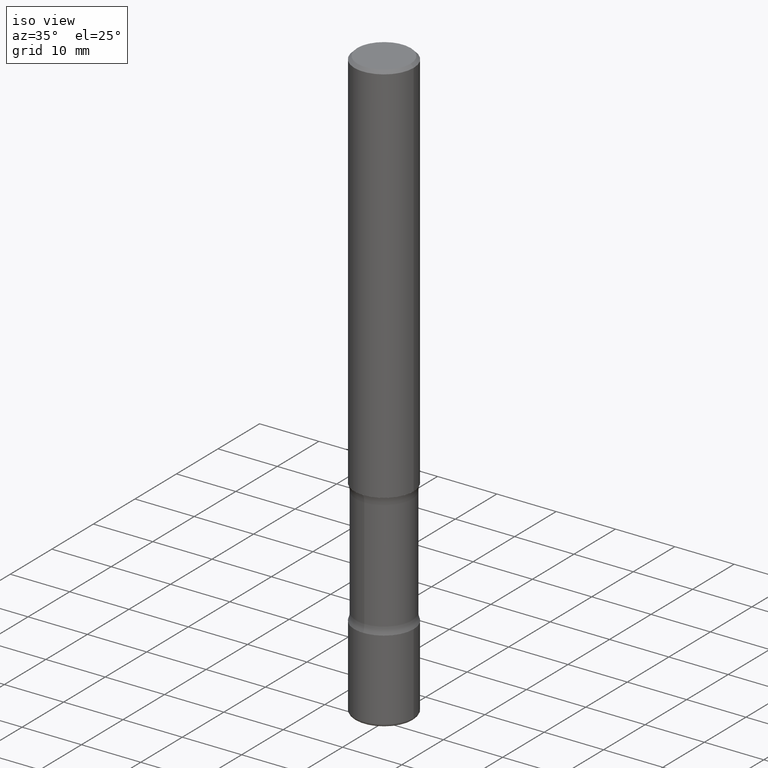
[diagram: clean part render]
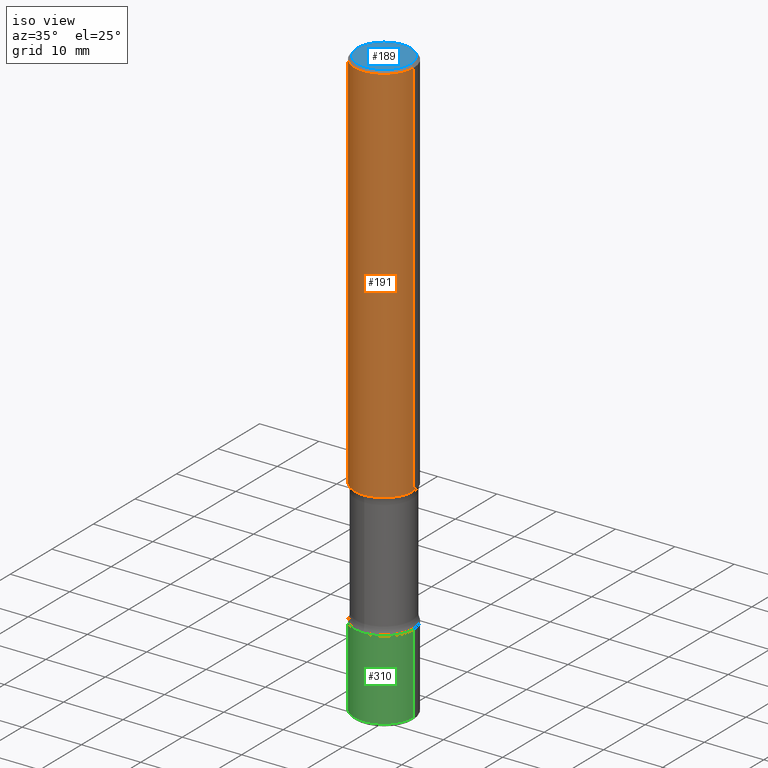
[diagram: same view with three faces highlighted in distinct colors, each labeled with its STEP entity id]
A machine part, iso view with three faces highlighted in distinct colors.
Their STEP definitions:

[orange] entity #191 — the highlighted cylindrical surface (edge-blend (fillet) strip) has radius 5 mm, axis along (-0, 0, 1).
#16 = CARTESIAN_POINT ( 'NONE',  ( -0.1968499999999998307, 1.304766576325677324E-15, -0.02000000000000006981 ) ) ;
#49 = AXIS2_PLACEMENT_3D ( 'NONE', #349, #146, #486 ) ;
#86 = CARTESIAN_POINT ( 'NONE',  ( -0.1968500000000001082, -3.103561811094476227E-15, -2.559000000000000163 ) ) ;
#87 = CARTESIAN_POINT ( 'NONE',  ( 0.000000000000000000, 0.000000000000000000, 0.000000000000000000 ) ) ;
#115 = VECTOR ( 'NONE', #469, 39.37007874015748143 ) ;
#119 = EDGE_CURVE ( 'NONE', #239, #194, #462, .T. ) ;
#122 = VERTEX_POINT ( 'NONE', #16 ) ;
#146 = DIRECTION ( 'NONE',  ( -2.445468806185136597E-29, 3.491481338843145583E-15, 1.000000000000000000 ) ) ;
#148 = EDGE_CURVE ( 'NONE', #316, #239, #497, .T. ) ;
#191 = ADVANCED_FACE ( 'NONE', ( #298 ), #226, .T. ) ;
#194 = VERTEX_POINT ( 'NONE', #372 ) ;
#210 = CARTESIAN_POINT ( 'NONE',  ( 0.1968500000000001082, -1.030929694920215344E-14, -2.559000000000000163 ) ) ;
#223 = DIRECTION ( 'NONE',  ( 1.000000000000000000, -6.982962677686266711E-15, 4.876176775795935793E-29 ) ) ;
#226 = CYLINDRICAL_SURFACE ( 'NONE', #403, 0.1968499999999999694 ) ;
#239 = VERTEX_POINT ( 'NONE', #210 ) ;
#275 = ORIENTED_EDGE ( 'NONE', *, *, #392, .F. ) ;
#282 = EDGE_LOOP ( 'NONE', ( #275, #375, #481, #540 ) ) ;
#292 = CIRCLE ( 'NONE', #483, 0.1968499999999998307 ) ;
#295 = DIRECTION ( 'NONE',  ( 1.000000000000000000, -6.982962677686266711E-15, 0.000000000000000000 ) ) ;
#298 = FACE_OUTER_BOUND ( 'NONE', #282, .T. ) ;
#301 = EDGE_CURVE ( 'NONE', #122, #194, #292, .T. ) ;
#305 = CARTESIAN_POINT ( 'NONE',  ( 0.1968499999999999694, -1.374596203102541411E-15, 9.598753983154298056E-30 ) ) ;
#316 = VERTEX_POINT ( 'NONE', #86 ) ;
#330 = CARTESIAN_POINT ( 'NONE',  ( 4.890937612370289799E-31, -6.982962677686315028E-17, -0.02000000000000006981 ) ) ;
#349 = CARTESIAN_POINT ( 'NONE',  ( 6.257954675027765161E-29, -8.934700746099610252E-15, -2.559000000000000163 ) ) ;
#371 = CARTESIAN_POINT ( 'NONE',  ( -0.1968499999999999694, 1.398703375343756999E-15, -9.682923725166782276E-30 ) ) ;
#372 = CARTESIAN_POINT ( 'NONE',  ( 0.1968499999999998307, -1.420318657638187938E-15, -0.02000000000000006981 ) ) ;
#375 = ORIENTED_EDGE ( 'NONE', *, *, #148, .T. ) ;
#392 = EDGE_CURVE ( 'NONE', #316, #122, #528, .T. ) ;
#403 = AXIS2_PLACEMENT_3D ( 'NONE', #87, #500, #223 ) ;
#462 = LINE ( 'NONE', #305, #115 ) ;
#469 = DIRECTION ( 'NONE',  ( -2.445468806185136877E-29, 3.491481338843145188E-15, 1.000000000000000000 ) ) ;
#472 = DIRECTION ( 'NONE',  ( -2.445468806185136877E-29, 3.491481338843145188E-15, 1.000000000000000000 ) ) ;
#481 = ORIENTED_EDGE ( 'NONE', *, *, #119, .T. ) ;
#483 = AXIS2_PLACEMENT_3D ( 'NONE', #330, #548, #295 ) ;
#486 = DIRECTION ( 'NONE',  ( 1.000000000000000000, -6.982962677686265133E-15, 0.000000000000000000 ) ) ;
#497 = CIRCLE ( 'NONE', #49, 0.1968500000000001082 ) ;
#500 = DIRECTION ( 'NONE',  ( -2.445468806185136597E-29, 3.491481338843145583E-15, 1.000000000000000000 ) ) ;
#511 = VECTOR ( 'NONE', #472, 39.37007874015748143 ) ;
#528 = LINE ( 'NONE', #371, #511 ) ;
#540 = ORIENTED_EDGE ( 'NONE', *, *, #301, .F. ) ;
#548 = DIRECTION ( 'NONE',  ( -2.445468806185136597E-29, 3.491481338843145583E-15, 1.000000000000000000 ) ) ;

[blue] entity #189 — the highlighted planar face has unit normal (0, -0, -1).
#22 = PLANE ( 'NONE',  #147 ) ;
#62 = DIRECTION ( 'NONE',  ( -2.445468806185136597E-29, 3.491481338843145583E-15, 1.000000000000000000 ) ) ;
#84 = VERTEX_POINT ( 'NONE', #417 ) ;
#103 = AXIS2_PLACEMENT_3D ( 'NONE', #170, #62, #482 ) ;
#108 = FACE_OUTER_BOUND ( 'NONE', #543, .T. ) ;
#147 = AXIS2_PLACEMENT_3D ( 'NONE', #274, #439, #261 ) ;
#157 = DIRECTION ( 'NONE',  ( -2.445468806185136597E-29, 3.491481338843145583E-15, 1.000000000000000000 ) ) ;
#163 = ORIENTED_EDGE ( 'NONE', *, *, #246, .T. ) ;
#170 = CARTESIAN_POINT ( 'NONE',  ( -1.043851414335219820E-46, 1.490343170380447200E-32, 4.268512490100411279E-18 ) ) ;
#183 = CARTESIAN_POINT ( 'NONE',  ( -0.1768499999999998129, 1.269851762937246267E-15, 4.268512490091652920E-18 ) ) ;
#189 = ADVANCED_FACE ( 'NONE', ( #108 ), #22, .F. ) ;
#244 = CIRCLE ( 'NONE', #345, 0.1768499999999998129 ) ;
#246 = EDGE_CURVE ( 'NONE', #286, #84, #381, .T. ) ;
#261 = DIRECTION ( 'NONE',  ( -1.000000000000000000, 6.982962677686265922E-15, -4.876176775795935793E-29 ) ) ;
#274 = CARTESIAN_POINT ( 'NONE',  ( 1.234936949548814815E-15, 0.1768499999999998129, -6.153342185293594620E-16 ) ) ;
#279 = DIRECTION ( 'NONE',  ( 1.000000000000000000, -6.982962677686266711E-15, 4.875932113059883053E-29 ) ) ;
#286 = VERTEX_POINT ( 'NONE', #183 ) ;
#345 = AXIS2_PLACEMENT_3D ( 'NONE', #440, #157, #279 ) ;
#381 = CIRCLE ( 'NONE', #103, 0.1768499999999998129 ) ;
#417 = CARTESIAN_POINT ( 'NONE',  ( 0.1768499999999998129, -1.316798864272041155E-15, 4.268512490109333727E-18 ) ) ;
#439 = DIRECTION ( 'NONE',  ( 2.438088387897960049E-29, -3.491481338843145188E-15, -1.000000000000000000 ) ) ;
#440 = CARTESIAN_POINT ( 'NONE',  ( -1.043851414335219820E-46, 1.490343170380447200E-32, 4.268512490100411279E-18 ) ) ;
#482 = DIRECTION ( 'NONE',  ( 1.000000000000000000, -6.982962677686266711E-15, 4.875932113059883053E-29 ) ) ;
#509 = EDGE_CURVE ( 'NONE', #84, #286, #244, .T. ) ;
#530 = ORIENTED_EDGE ( 'NONE', *, *, #509, .T. ) ;
#543 = EDGE_LOOP ( 'NONE', ( #163, #530 ) ) ;

[green] entity #310 — the highlighted cylindrical surface (edge-blend (fillet) strip) has radius 5 mm, axis along (-0, 0, 1).
#37 = ORIENTED_EDGE ( 'NONE', *, *, #38, .F. ) ;
#38 = EDGE_CURVE ( 'NONE', #288, #517, #43, .T. ) ;
#42 = DIRECTION ( 'NONE',  ( 1.000000000000000000, -6.982962677686266711E-15, 4.876176775795935793E-29 ) ) ;
#43 = LINE ( 'NONE', #175, #518 ) ;
#72 = CARTESIAN_POINT ( 'NONE',  ( 0.000000000000000000, 0.000000000000000000, 0.000000000000000000 ) ) ;
#105 = EDGE_CURVE ( 'NONE', #517, #523, #152, .T. ) ;
#152 = CIRCLE ( 'NONE', #380, 0.1968500000000001082 ) ;
#158 = VERTEX_POINT ( 'NONE', #402 ) ;
#159 = DIRECTION ( 'NONE',  ( 1.000000000000000000, -6.982962677686272233E-15, 0.000000000000000000 ) ) ;
#161 = EDGE_LOOP ( 'NONE', ( #37, #398, #537, #323 ) ) ;
#175 = CARTESIAN_POINT ( 'NONE',  ( -0.1968500000000001360, 1.398703375343758182E-15, -9.682923725166790684E-30 ) ) ;
#185 = CIRCLE ( 'NONE', #313, 0.1968500000000001915 ) ;
#208 = AXIS2_PLACEMENT_3D ( 'NONE', #72, #464, #42 ) ;
#221 = DIRECTION ( 'NONE',  ( -2.445468806185136877E-29, 3.491481338843145188E-15, 1.000000000000000000 ) ) ;
#227 = VECTOR ( 'NONE', #480, 39.37007874015748143 ) ;
#250 = EDGE_CURVE ( 'NONE', #158, #523, #550, .T. ) ;
#260 = CARTESIAN_POINT ( 'NONE',  ( 0.1968500000000001082, -1.319605372015766376E-14, -3.385799999999999699 ) ) ;
#288 = VERTEX_POINT ( 'NONE', #341 ) ;
#306 = EDGE_CURVE ( 'NONE', #288, #158, #185, .T. ) ;
#310 = ADVANCED_FACE ( 'NONE', ( #485 ), #409, .T. ) ;
#313 = AXIS2_PLACEMENT_3D ( 'NONE', #325, #503, #159 ) ;
#315 = CARTESIAN_POINT ( 'NONE',  ( 0.1968500000000001360, -1.374596203102542594E-15, 9.598753983154306463E-30 ) ) ;
#323 = ORIENTED_EDGE ( 'NONE', *, *, #105, .F. ) ;
#325 = CARTESIAN_POINT ( 'NONE',  ( 9.579634954469036932E-29, -1.367717984865025539E-14, -3.917300000000000448 ) ) ;
#341 = CARTESIAN_POINT ( 'NONE',  ( -0.1968500000000001082, -1.227847647330649839E-14, -3.917300000000000448 ) ) ;
#380 = AXIS2_PLACEMENT_3D ( 'NONE', #553, #542, #479 ) ;
#398 = ORIENTED_EDGE ( 'NONE', *, *, #306, .T. ) ;
#402 = CARTESIAN_POINT ( 'NONE',  ( 0.1968500000000001082, -1.505177605175279857E-14, -3.917300000000000448 ) ) ;
#409 = CYLINDRICAL_SURFACE ( 'NONE', #208, 0.1968500000000001360 ) ;
#464 = DIRECTION ( 'NONE',  ( -2.445468806185136597E-29, 3.491481338843145583E-15, 1.000000000000000000 ) ) ;
#479 = DIRECTION ( 'NONE',  ( 1.000000000000000000, -6.982962677686265133E-15, 0.000000000000000000 ) ) ;
#480 = DIRECTION ( 'NONE',  ( -2.445468806185136877E-29, 3.491481338843145188E-15, 1.000000000000000000 ) ) ;
#485 = FACE_OUTER_BOUND ( 'NONE', #161, .T. ) ;
#503 = DIRECTION ( 'NONE',  ( -2.445468806185136597E-29, 3.491481338843145583E-15, 1.000000000000000000 ) ) ;
#517 = VERTEX_POINT ( 'NONE', #555 ) ;
#518 = VECTOR ( 'NONE', #221, 39.37007874015748143 ) ;
#523 = VERTEX_POINT ( 'NONE', #260 ) ;
#537 = ORIENTED_EDGE ( 'NONE', *, *, #250, .T. ) ;
#542 = DIRECTION ( 'NONE',  ( -2.445468806185136597E-29, 3.491481338843145583E-15, 1.000000000000000000 ) ) ;
#550 = LINE ( 'NONE', #315, #227 ) ;
#553 = CARTESIAN_POINT ( 'NONE',  ( 8.279868283981634472E-29, -1.182145751705512057E-14, -3.385799999999999699 ) ) ;
#555 = CARTESIAN_POINT ( 'NONE',  ( -0.1968500000000001082, -1.135061530750893177E-14, -3.385799999999999699 ) ) ;